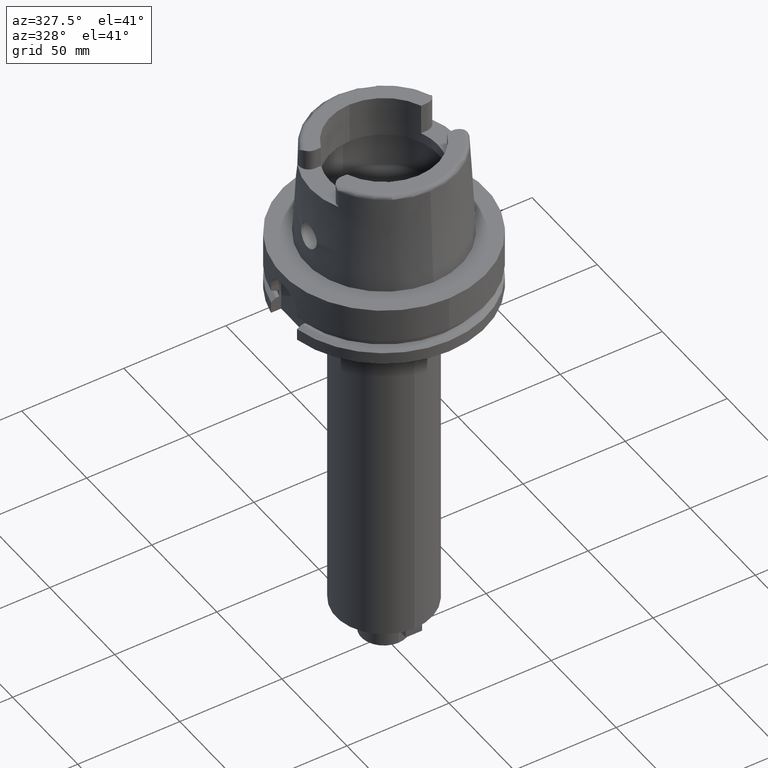
[diagram: clean part render]
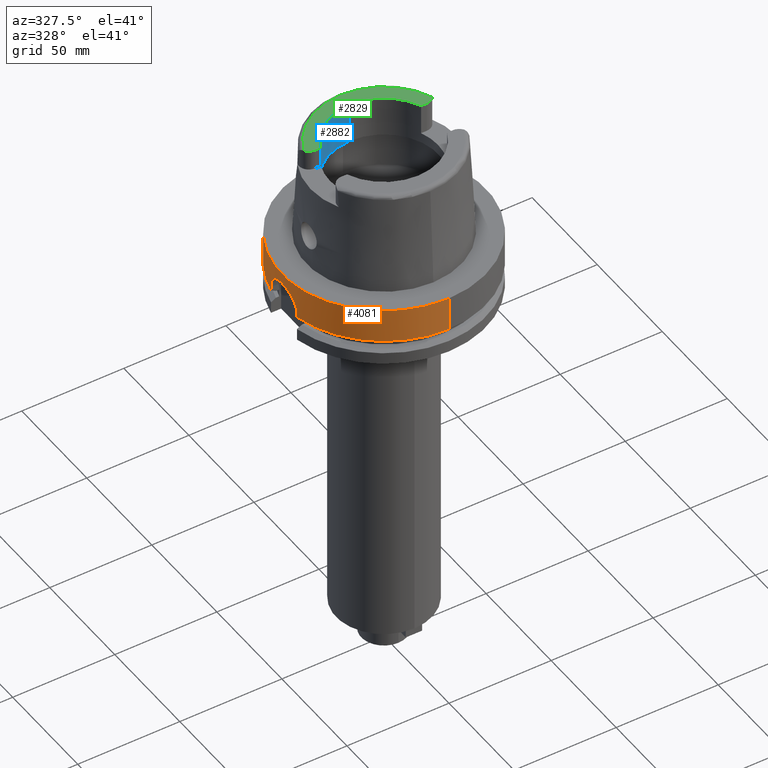
[diagram: same view with three faces highlighted in distinct colors, each labeled with its STEP entity id]
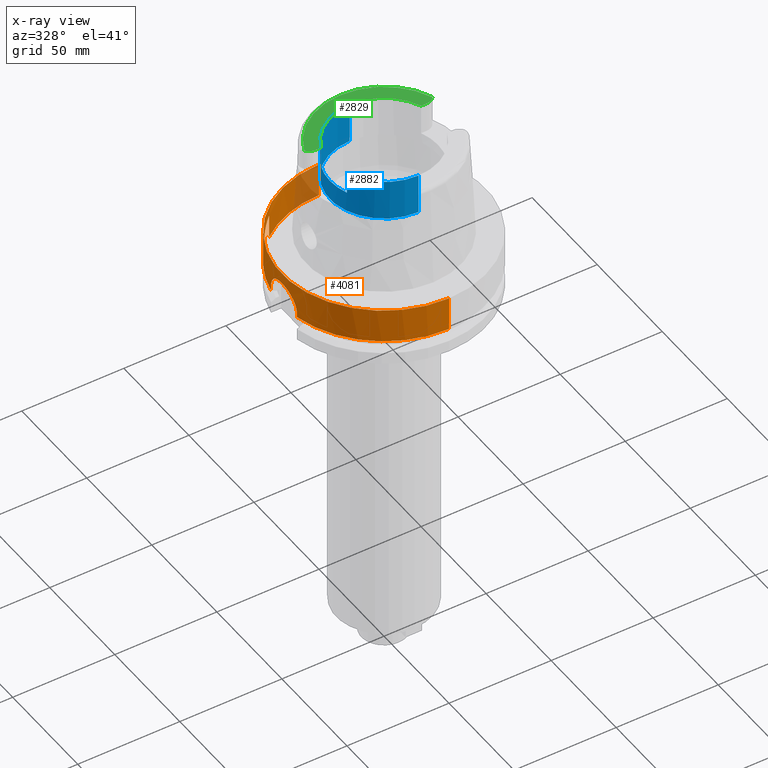
[diagram: x-ray of the same camera — body ghosted, the three highlighted faces saturated]
A machine part, auxiliary view with three faces highlighted in distinct colors.
The next image is the same camera in x-ray (body ghosted, the three faces saturated) — at least one of them is partly hidden behind the body in this view.
Their STEP definitions:

[orange] entity #4081 — the highlighted cylindrical surface (partial cylindrical patch) has radius 50 mm, axis along (0, 0, 1).
#1375=CARTESIAN_POINT('',(-3.150000355959E1,3.882975374305E1,
-1.675239179145E1));
#1560=CARTESIAN_POINT('',(-3.882975730068E1,3.149999917413E1,
-1.675240773890E1));
#1584=DIRECTION('',(-3.028823767049E-7,-2.457085509676E-7,-9.999999999999E-1));
#1585=VECTOR('',#1584,1.175239179145E1);
#1586=CARTESIAN_POINT('',(-3.15E1,3.882975663071E1,-5.000000000003E0));
#1587=LINE('',#1586,#1585);
#1591=DIRECTION('',(0.E0,2.969006079282E-14,-1.E0));
#1592=VECTOR('',#1591,1.675240473581E1);
#1593=CARTESIAN_POINT('',(0.E0,-5.E1,-2.084258691563E-13));
#1594=LINE('',#1593,#1592);
#1598=DIRECTION('',(3.933032361780E-13,-2.534170336198E-14,1.E0));
#1599=VECTOR('',#1598,1.752404735809E0);
#1600=CARTESIAN_POINT('',(-4.898979485566E1,-1.E1,-1.675240473581E1));
#1601=LINE('',#1600,#1599);
#1605=DIRECTION('',(-4.014125812538E-13,-2.635537149646E-14,-1.E0));
#1606=VECTOR('',#1605,1.752404735809E0);
#1607=CARTESIAN_POINT('',(-4.898979485566E1,1.E1,-1.5E1));
#1608=LINE('',#1607,#1606);
#1612=DIRECTION('',(3.166955095345E-7,3.903884141555E-7,9.999999999999E-1));
#1613=VECTOR('',#1612,2.115509879686E0);
#1614=CARTESIAN_POINT('',(-3.882975730068E1,3.149999917413E1,
-1.675240773890E1));
#1615=LINE('',#1614,#1613);
#1619=CARTESIAN_POINT('',(-3.882975663071E1,3.15E1,-1.463689785921E1));
#1620=CARTESIAN_POINT('',(-3.882975663071E1,3.15E1,-1.430492417059E1));
#1621=CARTESIAN_POINT('',(-3.880306332829E1,3.153294642730E1,
-1.364354791153E1));
#1622=CARTESIAN_POINT('',(-3.868260635393E1,3.168085915707E1,
-1.265735104469E1));
#1623=CARTESIAN_POINT('',(-3.847869905749E1,3.192864451378E1,
-1.168255886534E1));
#1624=CARTESIAN_POINT('',(-3.818849580276E1,3.227581547289E1,
-1.073027751668E1));
#1625=CARTESIAN_POINT('',(-3.780492104334E1,3.272509674330E1,
-9.803805716261E0));
#1626=CARTESIAN_POINT('',(-3.732217189270E1,3.327569380697E1,
-8.915624471504E0));
#1627=CARTESIAN_POINT('',(-3.672705854906E1,3.393275715930E1,
-8.069746215052E0));
#1628=CARTESIAN_POINT('',(-3.601005588324E1,3.469437944357E1,
-7.282021758524E0));
#1629=CARTESIAN_POINT('',(-3.515380095136E1,3.556378946639E1,
-6.562253772061E0));
#1630=CARTESIAN_POINT('',(-3.413835248290E1,3.654214820667E1,
-5.925491138922E0));
#1631=CARTESIAN_POINT('',(-3.294305598085E1,3.762638382438E1,
-5.390155745303E0));
#1632=CARTESIAN_POINT('',(-3.200582611130E1,3.841941353592E1,
-5.113700066560E0));
#1633=CARTESIAN_POINT('',(-3.15E1,3.882975663071E1,-5.000000000003E0));
#1656=CARTESIAN_POINT('',(0.E0,0.E0,-1.675240473581E1));
#1657=DIRECTION('',(0.E0,0.E0,1.E0));
#1658=DIRECTION('',(0.E0,1.E0,0.E0));
#1659=AXIS2_PLACEMENT_3D('',#1656,#1657,#1658);
#1813=DIRECTION('',(0.E0,-2.969006079282E-14,-1.E0));
#1814=VECTOR('',#1813,1.675240473581E1);
#1815=CARTESIAN_POINT('',(0.E0,5.E1,-2.084258691563E-13));
#1816=LINE('',#1815,#1814);
#1887=CARTESIAN_POINT('',(0.E0,0.E0,-1.675240473581E1));
#1888=DIRECTION('',(0.E0,0.E0,1.E0));
#1889=DIRECTION('',(-9.797958971133E-1,-2.E-1,0.E0));
#1890=AXIS2_PLACEMENT_3D('',#1887,#1888,#1889);
#2041=CARTESIAN_POINT('',(0.E0,0.E0,-4.831690603169E-13));
#2042=DIRECTION('',(0.E0,0.E0,-1.E0));
#2043=DIRECTION('',(0.E0,-1.E0,0.E0));
#2044=AXIS2_PLACEMENT_3D('',#2041,#2042,#2043);
#2073=CARTESIAN_POINT('',(-4.898979485566E1,1.E1,-1.5E1));
#2074=CARTESIAN_POINT('',(-4.898979485566E1,1.E1,-1.420415623930E1));
#2075=CARTESIAN_POINT('',(-4.902948717222E1,9.809113079835E0,
-1.260616824485E1));
#2076=CARTESIAN_POINT('',(-4.919619651383E1,8.952747846036E0,
-1.032786853644E1));
#2077=CARTESIAN_POINT('',(-4.943361285442E1,7.564353861966E0,
-8.308027868154E0));
#2078=CARTESIAN_POINT('',(-4.968504833634E1,5.724733122266E0,
-6.680051629938E0));
#2079=CARTESIAN_POINT('',(-4.989058110917E1,3.559312272706E0,
-5.550486967281E0));
#2080=CARTESIAN_POINT('',(-5.000467885625E1,1.205525691561E0,
-4.975889665071E0));
#2081=CARTESIAN_POINT('',(-5.000461136383E1,-1.208480410593E0,
-4.976255625359E0));
#2082=CARTESIAN_POINT('',(-4.989038626271E1,-3.561992729931E0,
-5.551493366200E0));
#2083=CARTESIAN_POINT('',(-4.968476380190E1,-5.727174795820E0,
-6.681739841124E0));
#2084=CARTESIAN_POINT('',(-4.943331924923E1,-7.566227109628E0,
-8.310130132851E0));
#2085=CARTESIAN_POINT('',(-4.919592737174E1,-8.954227254277E0,
-1.033067466084E1));
#2086=CARTESIAN_POINT('',(-4.902936824586E1,-9.809622601936E0,
-1.260874153416E1));
#2087=CARTESIAN_POINT('',(-4.898979485566E1,-1.E1,-1.420518584666E1));
#2088=CARTESIAN_POINT('',(-4.898979485566E1,-1.E1,-1.5E1));
#2107=CARTESIAN_POINT('',(0.E0,0.E0,-1.675240473581E1));
#2108=DIRECTION('',(0.E0,0.E0,1.E0));
#2109=DIRECTION('',(-7.765951326142E-1,6.3E-1,0.E0));
#2110=AXIS2_PLACEMENT_3D('',#2107,#2108,#2109);
#2115=CARTESIAN_POINT('',(-4.898979485566E1,1.E1,-1.675240473581E1));
#2679=VERTEX_POINT('',#1375);
#2680=CARTESIAN_POINT('',(-3.15E1,3.882975663071E1,-5.000000000003E0));
#2681=VERTEX_POINT('',#2680);
#2700=CARTESIAN_POINT('',(-4.898979485566E1,-1.E1,-1.5E1));
#2701=VERTEX_POINT('',#2700);
#2702=CARTESIAN_POINT('',(-4.898979485566E1,-1.E1,-1.675240473581E1));
#2703=VERTEX_POINT('',#2702);
#2722=VERTEX_POINT('',#2115);
#2723=CARTESIAN_POINT('',(-4.898979485566E1,1.E1,-1.5E1));
#2724=VERTEX_POINT('',#2723);
#2763=CARTESIAN_POINT('',(0.E0,-5.E1,-1.675240473581E1));
#2764=VERTEX_POINT('',#2763);
#2768=CARTESIAN_POINT('',(0.E0,5.E1,-1.675240473581E1));
#2769=VERTEX_POINT('',#2768);
#2770=VERTEX_POINT('',#1560);
#2771=CARTESIAN_POINT('',(0.E0,5.E1,-2.084258691563E-13));
#2772=VERTEX_POINT('',#2771);
#2773=CARTESIAN_POINT('',(0.E0,-5.E1,-4.831690603169E-13));
#2774=VERTEX_POINT('',#2773);
#2775=CARTESIAN_POINT('',(-3.882975663071E1,3.15E1,-1.463689785921E1));
#2776=VERTEX_POINT('',#2775);
#4055=CARTESIAN_POINT('',(0.E0,0.E0,-2.3035E2));
#4056=DIRECTION('',(0.E0,0.E0,1.E0));
#4057=DIRECTION('',(0.E0,1.E0,0.E0));
#4058=AXIS2_PLACEMENT_3D('',#4055,#4056,#4057);
#4059=CYLINDRICAL_SURFACE('',#4058,5.E1);
#4060=ORIENTED_EDGE('',*,*,#3823,.T.);
#4062=ORIENTED_EDGE('',*,*,#4061,.F.);
#4064=ORIENTED_EDGE('',*,*,#4063,.F.);
#4066=ORIENTED_EDGE('',*,*,#4065,.F.);
#4068=ORIENTED_EDGE('',*,*,#4067,.T.);
#4070=ORIENTED_EDGE('',*,*,#4069,.F.);
#4071=ORIENTED_EDGE('',*,*,#3946,.T.);
#4073=ORIENTED_EDGE('',*,*,#4072,.F.);
#4074=ORIENTED_EDGE('',*,*,#3996,.T.);
#4076=ORIENTED_EDGE('',*,*,#4075,.F.);
#4077=ORIENTED_EDGE('',*,*,#4027,.T.);
#4078=ORIENTED_EDGE('',*,*,#4048,.T.);
#4079=EDGE_LOOP('',(#4060,#4062,#4064,#4066,#4068,#4070,#4071,#4073,#4074,#4076,
#4077,#4078));
#4080=FACE_OUTER_BOUND('',#4079,.F.);
#1634=B_SPLINE_CURVE_WITH_KNOTS('',3,(#1619,#1620,#1621,#1622,#1623,#1624,#1625,
#1626,#1627,#1628,#1629,#1630,#1631,#1632,#1633),.UNSPECIFIED.,.F.,.F.,(4,1,1,1,
1,1,1,1,1,1,1,1,4),(0.E0,8.333333333333E-2,1.666666666667E-1,2.5E-1,
3.333333333333E-1,4.166666666667E-1,5.E-1,5.833333333333E-1,6.666666666667E-1,
7.5E-1,8.333333333333E-1,9.166666666667E-1,1.E0),.UNSPECIFIED.);
#1660=CIRCLE('',#1659,5.E1);
#1891=CIRCLE('',#1890,5.E1);
#2045=CIRCLE('',#2044,5.E1);
#2089=B_SPLINE_CURVE_WITH_KNOTS('',3,(#2073,#2074,#2075,#2076,#2077,#2078,#2079,
#2080,#2081,#2082,#2083,#2084,#2085,#2086,#2087,#2088),.UNSPECIFIED.,.F.,.F.,(4,
1,1,1,1,1,1,1,1,1,1,1,1,4),(0.E0,7.692307692308E-2,1.538461538462E-1,
2.307692307692E-1,3.076923076923E-1,3.846153846154E-1,4.615384615385E-1,
5.384615384615E-1,6.153846153846E-1,6.923076923077E-1,7.692307692308E-1,
8.461538461538E-1,9.230769230769E-1,1.E0),.UNSPECIFIED.);
#2111=CIRCLE('',#2110,5.E1);
#3823=EDGE_CURVE('',#2681,#2679,#1587,.T.);
#3946=EDGE_CURVE('',#2703,#2701,#1601,.T.);
#3996=EDGE_CURVE('',#2724,#2722,#1608,.T.);
#4027=EDGE_CURVE('',#2770,#2776,#1615,.T.);
#4048=EDGE_CURVE('',#2776,#2681,#1634,.T.);
#4061=EDGE_CURVE('',#2769,#2679,#1660,.T.);
#4063=EDGE_CURVE('',#2772,#2769,#1816,.T.);
#4065=EDGE_CURVE('',#2774,#2772,#2045,.T.);
#4067=EDGE_CURVE('',#2774,#2764,#1594,.T.);
#4069=EDGE_CURVE('',#2703,#2764,#1891,.T.);
#4072=EDGE_CURVE('',#2724,#2701,#2089,.T.);
#4075=EDGE_CURVE('',#2770,#2722,#2111,.T.);
#4081=ADVANCED_FACE('',(#4080),#4059,.T.);

[blue] entity #2882 — the highlighted cylindrical surface (partial cylindrical patch) has radius 26.5 mm, axis along (0, 0, 1).
#50=CARTESIAN_POINT('',(0.E0,0.E0,5.E1));
#51=DIRECTION('',(0.E0,0.E0,1.E0));
#52=DIRECTION('',(0.E0,1.E0,0.E0));
#53=AXIS2_PLACEMENT_3D('',#50,#51,#52);
#79=DIRECTION('',(0.E0,0.E0,1.E0));
#80=VECTOR('',#79,1.E1);
#81=CARTESIAN_POINT('',(-2.453670515778E1,1.001E1,4.E1));
#82=LINE('',#81,#80);
#86=DIRECTION('',(0.E0,4.370575506605E-14,1.E0));
#87=VECTOR('',#86,1.999662432703E1);
#88=CARTESIAN_POINT('',(0.E0,-2.65E1,3.000337567297E1));
#89=LINE('',#88,#87);
#93=DIRECTION('',(0.E0,0.E0,-1.E0));
#94=VECTOR('',#93,1.E1);
#95=CARTESIAN_POINT('',(-2.453670515778E1,-1.001E1,5.E1));
#96=LINE('',#95,#94);
#100=CARTESIAN_POINT('',(0.E0,0.E0,4.E1));
#101=DIRECTION('',(0.E0,0.E0,1.E0));
#102=DIRECTION('',(-9.259134021805E-1,3.777358490566E-1,0.E0));
#103=AXIS2_PLACEMENT_3D('',#100,#101,#102);
#175=CARTESIAN_POINT('',(0.E0,0.E0,5.E1));
#176=DIRECTION('',(0.E0,0.E0,1.E0));
#177=DIRECTION('',(-9.259134021805E-1,-3.777358490566E-1,0.E0));
#178=AXIS2_PLACEMENT_3D('',#175,#176,#177);
#484=DIRECTION('',(0.E0,-4.370575506605E-14,1.E0));
#485=VECTOR('',#484,1.999662432703E1);
#486=CARTESIAN_POINT('',(0.E0,2.65E1,3.000337567297E1));
#487=LINE('',#486,#485);
#557=CARTESIAN_POINT('',(0.E0,0.E0,3.000337567297E1));
#558=DIRECTION('',(0.E0,0.E0,-1.E0));
#559=DIRECTION('',(0.E0,-1.E0,0.E0));
#560=AXIS2_PLACEMENT_3D('',#557,#558,#559);
#2450=CARTESIAN_POINT('',(0.E0,2.65E1,5.E1));
#2451=VERTEX_POINT('',#2450);
#2452=CARTESIAN_POINT('',(-2.453670515778E1,1.001E1,5.E1));
#2453=VERTEX_POINT('',#2452);
#2458=CARTESIAN_POINT('',(-2.453670515778E1,-1.001E1,5.E1));
#2459=VERTEX_POINT('',#2458);
#2460=CARTESIAN_POINT('',(0.E0,-2.65E1,5.E1));
#2461=VERTEX_POINT('',#2460);
#2474=CARTESIAN_POINT('',(-2.453670515778E1,1.001E1,4.E1));
#2475=VERTEX_POINT('',#2474);
#2476=CARTESIAN_POINT('',(-2.453670515778E1,-1.001E1,4.E1));
#2477=VERTEX_POINT('',#2476);
#2478=CARTESIAN_POINT('',(0.E0,2.65E1,3.000337567297E1));
#2479=VERTEX_POINT('',#2478);
#2480=CARTESIAN_POINT('',(0.E0,-2.65E1,3.000337567297E1));
#2481=VERTEX_POINT('',#2480);
#2861=CARTESIAN_POINT('',(0.E0,0.E0,-2.3035E2));
#2862=DIRECTION('',(0.E0,0.E0,1.E0));
#2863=DIRECTION('',(0.E0,1.E0,0.E0));
#2864=AXIS2_PLACEMENT_3D('',#2861,#2862,#2863);
#2865=CYLINDRICAL_SURFACE('',#2864,2.65E1);
#2867=ORIENTED_EDGE('',*,*,#2866,.F.);
#2868=ORIENTED_EDGE('',*,*,#2853,.T.);
#2869=ORIENTED_EDGE('',*,*,#2823,.F.);
#2871=ORIENTED_EDGE('',*,*,#2870,.F.);
#2873=ORIENTED_EDGE('',*,*,#2872,.F.);
#2875=ORIENTED_EDGE('',*,*,#2874,.T.);
#2877=ORIENTED_EDGE('',*,*,#2876,.F.);
#2879=ORIENTED_EDGE('',*,*,#2878,.T.);
#2880=EDGE_LOOP('',(#2867,#2868,#2869,#2871,#2873,#2875,#2877,#2879));
#2881=FACE_OUTER_BOUND('',#2880,.F.);
#54=CIRCLE('',#53,2.65E1);
#104=CIRCLE('',#103,2.65E1);
#179=CIRCLE('',#178,2.65E1);
#561=CIRCLE('',#560,2.65E1);
#2823=EDGE_CURVE('',#2451,#2453,#54,.T.);
#2853=EDGE_CURVE('',#2475,#2453,#82,.T.);
#2866=EDGE_CURVE('',#2475,#2477,#104,.T.);
#2870=EDGE_CURVE('',#2479,#2451,#487,.T.);
#2872=EDGE_CURVE('',#2481,#2479,#561,.T.);
#2874=EDGE_CURVE('',#2481,#2461,#89,.T.);
#2876=EDGE_CURVE('',#2459,#2461,#179,.T.);
#2878=EDGE_CURVE('',#2459,#2477,#96,.T.);
#2882=ADVANCED_FACE('',(#2881),#2865,.F.);

[green] entity #2829 — the highlighted planar face has unit normal (0, 0, 1).
#17=CARTESIAN_POINT('',(-2.737E1,1.489E1,5.E1));
#18=DIRECTION('',(0.E0,0.E0,-1.E0));
#19=DIRECTION('',(0.E0,-1.E0,0.E0));
#20=AXIS2_PLACEMENT_3D('',#17,#18,#19);
#26=CARTESIAN_POINT('',(0.E0,0.E0,5.E1));
#27=DIRECTION('',(0.E0,0.E0,-1.E0));
#28=DIRECTION('',(-9.332215253018E-1,3.593015233942E-1,0.E0));
#29=AXIS2_PLACEMENT_3D('',#26,#27,#28);
#34=CARTESIAN_POINT('',(2.737E1,1.489E1,5.E1));
#35=DIRECTION('',(0.E0,0.E0,-1.E0));
#36=DIRECTION('',(8.163632566569E-1,-5.775387720150E-1,0.E0));
#37=AXIS2_PLACEMENT_3D('',#34,#35,#36);
#42=CARTESIAN_POINT('',(0.E0,0.E0,5.E1));
#43=DIRECTION('',(0.E0,0.E0,1.E0));
#44=DIRECTION('',(9.259134021805E-1,3.777358490566E-1,0.E0));
#45=AXIS2_PLACEMENT_3D('',#42,#43,#44);
#50=CARTESIAN_POINT('',(0.E0,0.E0,5.E1));
#51=DIRECTION('',(0.E0,0.E0,1.E0));
#52=DIRECTION('',(0.E0,1.E0,0.E0));
#53=AXIS2_PLACEMENT_3D('',#50,#51,#52);
#72=DIRECTION('',(1.E0,1.429464217237E-13,0.E0));
#73=VECTOR('',#72,2.833294842218E0);
#74=CARTESIAN_POINT('',(-2.737E1,1.001E1,5.E1));
#75=LINE('',#74,#73);
#2353=DIRECTION('',(1.E0,-1.423194637337E-13,0.E0));
#2354=VECTOR('',#2353,2.833294842218E0);
#2355=CARTESIAN_POINT('',(2.453670515778E1,1.001E1,5.E1));
#2356=LINE('',#2355,#2354);
#2440=CARTESIAN_POINT('',(-2.737E1,1.001E1,5.E1));
#2441=CARTESIAN_POINT('',(-3.135385269249E1,1.207161079257E1,5.E1));
#2442=VERTEX_POINT('',#2440);
#2443=VERTEX_POINT('',#2441);
#2444=CARTESIAN_POINT('',(3.135385269249E1,1.207161079257E1,5.E1));
#2445=VERTEX_POINT('',#2444);
#2446=CARTESIAN_POINT('',(2.737E1,1.001E1,5.E1));
#2447=VERTEX_POINT('',#2446);
#2448=CARTESIAN_POINT('',(2.453670515778E1,1.001E1,5.E1));
#2449=VERTEX_POINT('',#2448);
#2450=CARTESIAN_POINT('',(0.E0,2.65E1,5.E1));
#2451=VERTEX_POINT('',#2450);
#2452=CARTESIAN_POINT('',(-2.453670515778E1,1.001E1,5.E1));
#2453=VERTEX_POINT('',#2452);
#2808=CARTESIAN_POINT('',(0.E0,0.E0,5.E1));
#2809=DIRECTION('',(0.E0,0.E0,1.E0));
#2810=DIRECTION('',(0.E0,1.E0,0.E0));
#2811=AXIS2_PLACEMENT_3D('',#2808,#2809,#2810);
#2812=PLANE('',#2811);
#2814=ORIENTED_EDGE('',*,*,#2813,.T.);
#2816=ORIENTED_EDGE('',*,*,#2815,.T.);
#2818=ORIENTED_EDGE('',*,*,#2817,.T.);
#2820=ORIENTED_EDGE('',*,*,#2819,.F.);
#2822=ORIENTED_EDGE('',*,*,#2821,.T.);
#2824=ORIENTED_EDGE('',*,*,#2823,.T.);
#2826=ORIENTED_EDGE('',*,*,#2825,.F.);
#2827=EDGE_LOOP('',(#2814,#2816,#2818,#2820,#2822,#2824,#2826));
#2828=FACE_OUTER_BOUND('',#2827,.F.);
#21=CIRCLE('',#20,4.88E0);
#30=CIRCLE('',#29,3.359743838136E1);
#38=CIRCLE('',#37,4.88E0);
#46=CIRCLE('',#45,2.65E1);
#54=CIRCLE('',#53,2.65E1);
#2813=EDGE_CURVE('',#2442,#2443,#21,.T.);
#2815=EDGE_CURVE('',#2443,#2445,#30,.T.);
#2817=EDGE_CURVE('',#2445,#2447,#38,.T.);
#2819=EDGE_CURVE('',#2449,#2447,#2356,.T.);
#2821=EDGE_CURVE('',#2449,#2451,#46,.T.);
#2823=EDGE_CURVE('',#2451,#2453,#54,.T.);
#2825=EDGE_CURVE('',#2442,#2453,#75,.T.);
#2829=ADVANCED_FACE('',(#2828),#2812,.T.);